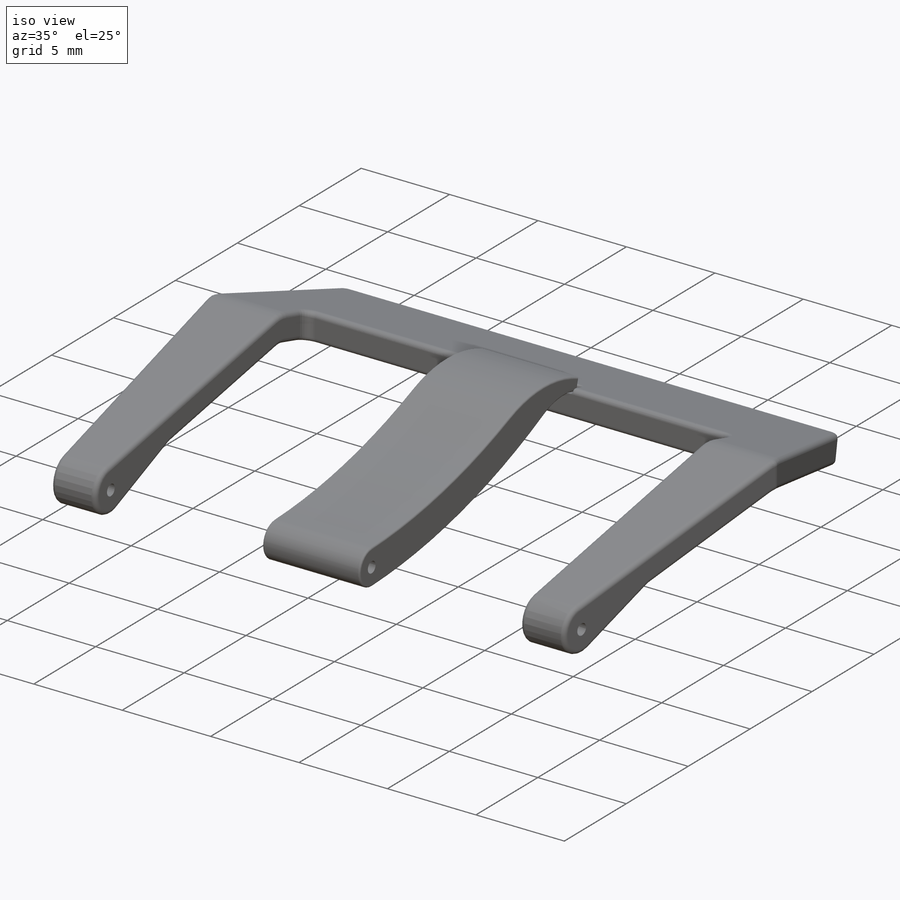
[diagram: iso view]
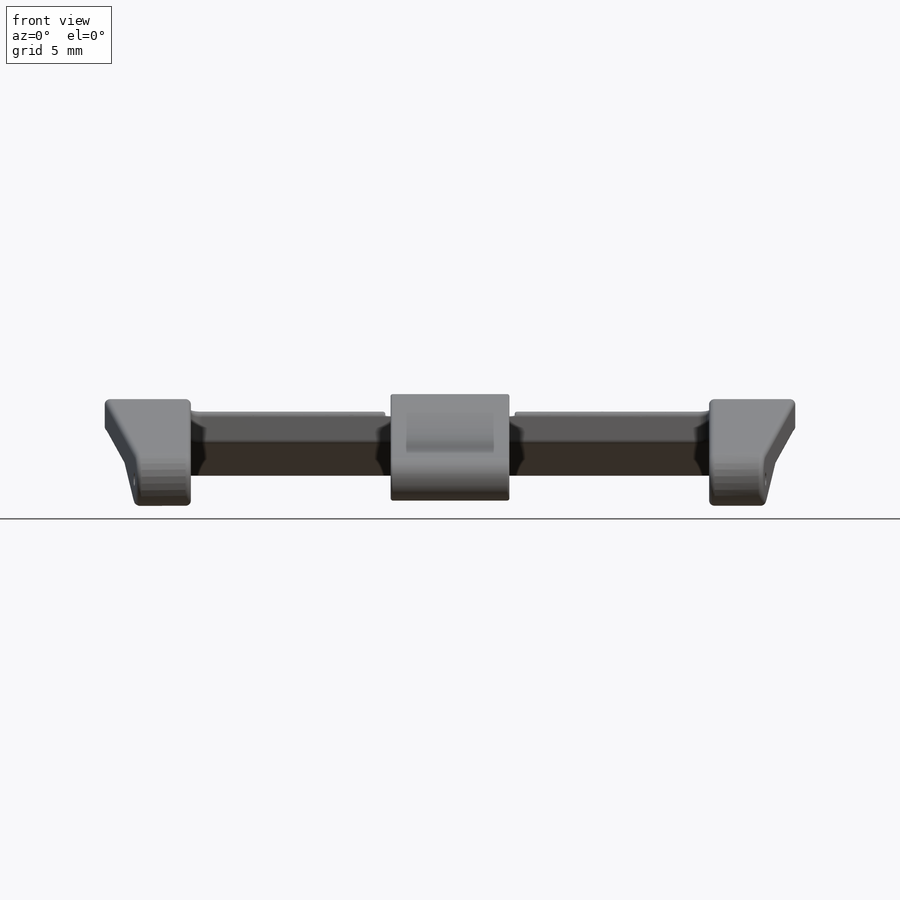
[diagram: front view]
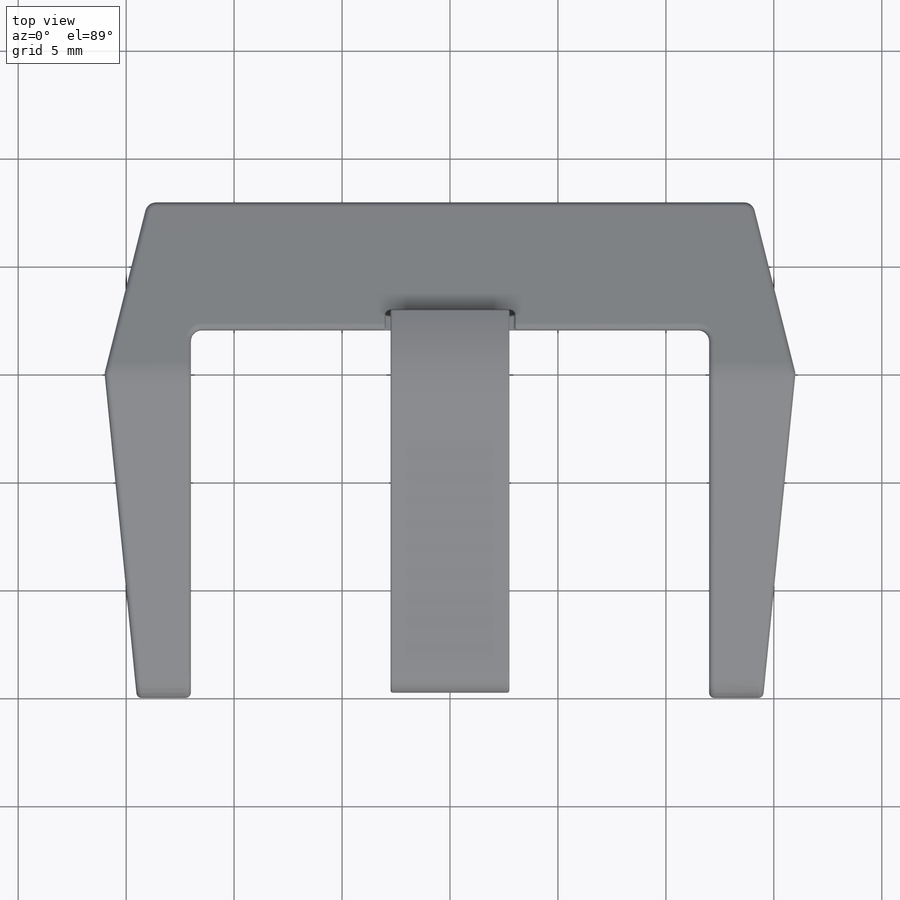
[diagram: top view]
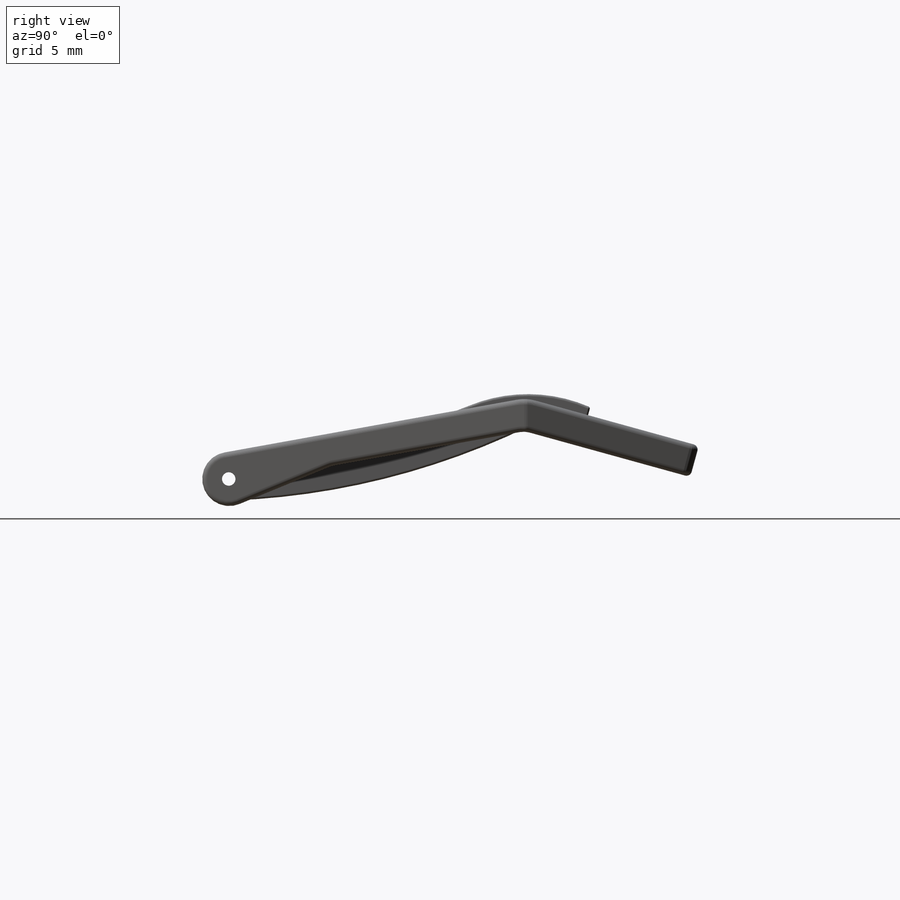
[diagram: right view]
SOLIDWORKS PART (.sldprt)
format: sldprt  version: not decoded by parser v0  size: 572,416 bytes
history: native  units: mm
features: fillet x9, sketch x5, cut_extrude x3, extrude x2, material x1 (+11 scaffold rows collapsed)
feature tree (31):
  scaffold x11  (default folders/planes/origin — collapsed)
  material  "Material <not specified>"
  sketch  "Sketch1"  dims[D1=29.0mm D2=28.0mm D3=23.0mm D4=32.0mm D5=15.0mm D6=6.0mm D7=4.0mm]
  extrude  "Boss-Extrude1"  Depth=5mm
  sketch  "Sketch2"  dims[c1.D1=2.5mm c1.D2=6.0mm c1.D3=7.6067mm c2.D3=~178.952016deg c3.D3=1.5mm c3.D4=1.5mm c3.D5=8.3mm]
  cut_extrude  "Cut-Extrude1"  Depth=95mm
  sketch  "Sketch3"  dims[D1=1.0mm D2=6.0mm]
  cut_extrude  "Cut-Extrude2"  Depth=0.3mm
  fillet  "Fillet1"  Radius=2mm
  fillet  "Fillet2"  Radius=0.5mm
  fillet  "Fillet3"  Radius=1mm
  fillet  "Fillet4"  Radius=0.25mm
  fillet  "Fillet5"  Radius=0.25mm
  fillet  "Fillet8"  Radius=0.1mm
  fillet  "Fillet9"  Radius=0.1mm
  sketch  "Sketch4"  dims[D1=2.0mm D2=2.0mm]
  extrude  "Boss-Extrude2"  Depth=5.5mm
  fillet  "Fillet10"  Radius=0.1mm
  sketch  "Sketch6"
  cut_extrude  "Cut-Extrude3"  Depth=47.5mm
  fillet  "Fillet11"  Radius=0.1mm
decode coverage: 18 of 19 modeling features carry decoded parameters
note: ~ marks probable driven/reference dimensions
note: suppression state not decoded; provenance and decode notes live in map.json
